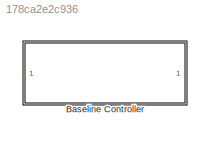
MODEL slx_178ca2e2c936
KIND model
CONFIG AbsTol = auto
CONFIG FixedStep = auto
CONFIG MaxStep = auto
CONFIG MinStep = auto
CONFIG RelTol = 1e-3
CONFIG SampleTimeConstraint = Unconstrained
CONFIG Solver = VariableStepAuto
CONFIG SolverMode = Auto
CONFIG SolverName = VariableStepAuto
CONFIG StartTime = 0.0
CONFIG StopTime = 10.0
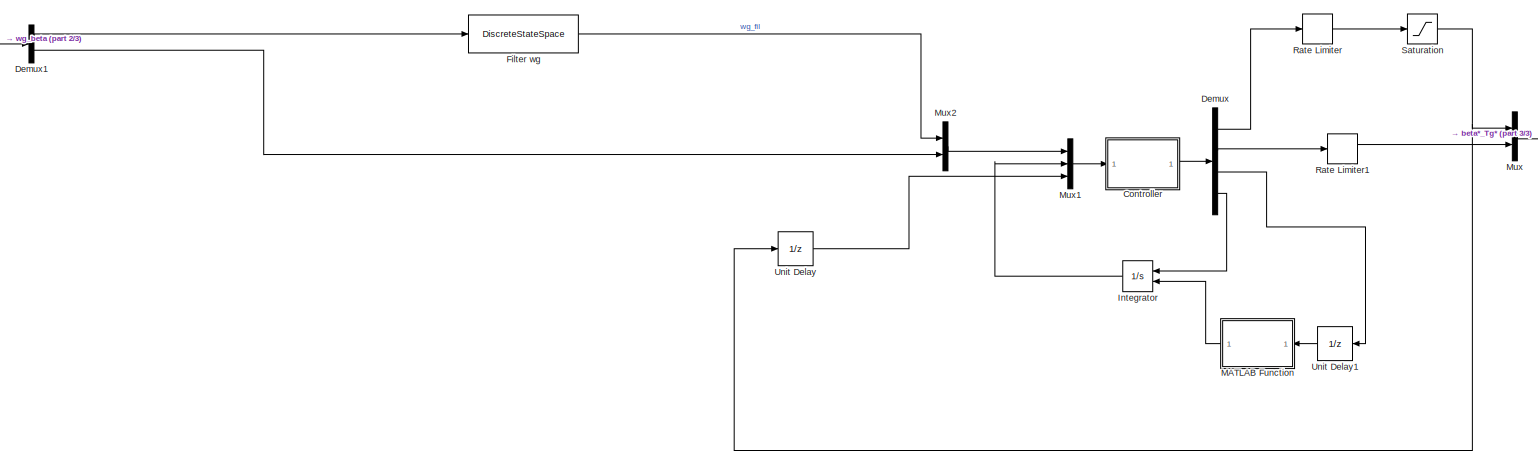
[diagram: Baseline Controller - part 1/3, most of the canvas]
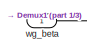
[diagram: Baseline Controller - part 2/3, top left region]
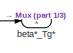
[diagram: Baseline Controller - part 3/3, middle right region]
BLOCK [SubSystem] Baseline Controller
  Ports = [1, 1]
  RequestExecContextInheritance = off
  Variant = off
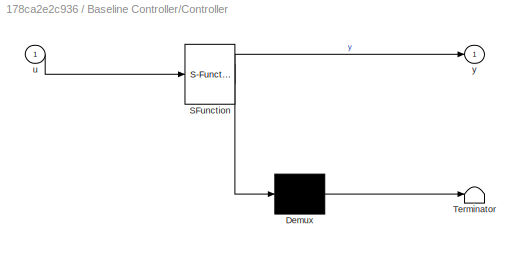
BLOCK [SubSystem] Baseline Controller/Controller
  ErrorFcn = Stateflow.Translate.translate
  PermitHierarchicalResolution = ExplicitOnly
  Ports = [1, 1]
  RequestExecContextInheritance = off
  SFBlockType = MATLAB Function
  TreatAsAtomicUnit = on
  Variant = off
BLOCK [Demux] Baseline Controller/Controller/ Demux 
  Outputs = 1
  Ports = [1, 1]
BLOCK [S-Function] Baseline Controller/Controller/ SFunction 
  EnableBusSupport = on
  FunctionName = sf_sfun
  Parameters = para_cntrl
  PortCounts = [1 2]
  Ports = [1, 2]
  SFunctionDeploymentMode = off
  Tag = Stateflow S-Function BaseLineCntrl 2
BLOCK [Terminator] Baseline Controller/Controller/ Terminator 
BLOCK [Inport] Baseline Controller/Controller/u
  IconDisplay = Port number
BLOCK [Outport] Baseline Controller/Controller/y
  IconDisplay = Port number
BLOCK [Demux] Baseline Controller/Demux
  DisplayOption = bar
  Ports = [1, 4]
BLOCK [Demux] Baseline Controller/Demux1
  DisplayOption = bar
  Outputs = 2
  Ports = [1, 2]
BLOCK [DiscreteStateSpace] Baseline Controller/Filter wg
  A = exp(-2*pi*para_mdl.dT*para_cntrl.filter.fc)
  B = 1-exp(-2*pi*para_mdl.dT*para_cntrl.filter.fc)
  C = exp(-2*pi*para_mdl.dT*para_cntrl.filter.fc)
  D = 1-exp(-2*pi*para_mdl.dT*para_cntrl.filter.fc)
  SampleTime = para_mdl.dT
  X0 = para_cntrl.ref.wg_d
BLOCK [Integrator] Baseline Controller/Integrator
  ExternalReset = rising
  InitialCondition = para_cntrl.initial.int_PCntrl
  Ports = [2, 1]
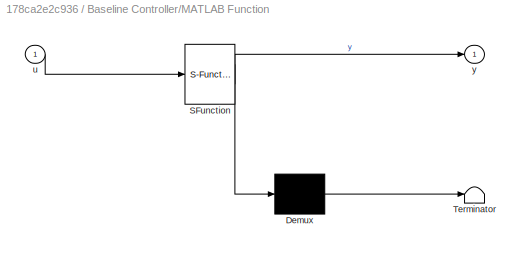
BLOCK [SubSystem] Baseline Controller/MATLAB Function
  ErrorFcn = Stateflow.Translate.translate
  PermitHierarchicalResolution = ExplicitOnly
  Ports = [1, 1]
  RequestExecContextInheritance = off
  SFBlockType = MATLAB Function
  TreatAsAtomicUnit = on
  Variant = off
BLOCK [Demux] Baseline Controller/MATLAB Function/ Demux 
  Outputs = 1
  Ports = [1, 1]
BLOCK [S-Function] Baseline Controller/MATLAB Function/ SFunction 
  EnableBusSupport = on
  FunctionName = sf_sfun
  PortCounts = [1 2]
  Ports = [1, 2]
  SFunctionDeploymentMode = off
  Tag = Stateflow S-Function BaseLineCntrl 1
BLOCK [Terminator] Baseline Controller/MATLAB Function/ Terminator 
BLOCK [Inport] Baseline Controller/MATLAB Function/u
  IconDisplay = Port number
BLOCK [Outport] Baseline Controller/MATLAB Function/y
  IconDisplay = Port number
BLOCK [Mux] Baseline Controller/Mux
  DisplayOption = bar
  Inputs = 2
  Ports = [2, 1]
BLOCK [Mux] Baseline Controller/Mux1
  DisplayOption = bar
  Inputs = 3
  Ports = [3, 1]
BLOCK [Mux] Baseline Controller/Mux2
  DisplayOption = bar
  Inputs = 2
  Ports = [2, 1]
BLOCK [RateLimiter] Baseline Controller/Rate Limiter
  FallingSlewLimit = -para_cntrl.limits.beta_rate/180*pi
  RisingSlewLimit = para_cntrl.limits.beta_rate/180*pi
  SampleTimeMode = inherited
BLOCK [RateLimiter] Baseline Controller/Rate Limiter1
  FallingSlewLimit = -para_cntrl.limits.Tg_rate
  RisingSlewLimit = para_cntrl.limits.Tg_rate
  SampleTimeMode = inherited
BLOCK [Saturate] Baseline Controller/Saturation
  InputPortMap = u0
  LowerLimit = 0
  Ports = [1, 1]
  UpperLimit = 90/180*pi
BLOCK [UnitDelay] Baseline Controller/Unit Delay
  InputProcessing = Elements as channels (sample based)
  SampleTime = para_mdl.dT
BLOCK [UnitDelay] Baseline Controller/Unit Delay1
  InputProcessing = Elements as channels (sample based)
  SampleTime = para_mdl.dT
BLOCK [Outport] Baseline Controller/beta*_Tg*
  IconDisplay = Port number
BLOCK [Inport] Baseline Controller/wg_beta
  IconDisplay = Port number
LINE Baseline Controller/Controller:1 -> Baseline Controller/Demux:1
LINE Baseline Controller/Demux1:1 -> Baseline Controller/Filter wg:1
LINE Baseline Controller/Demux1:2 -> Baseline Controller/Mux2:2
LINE Baseline Controller/Demux:1 -> Baseline Controller/Rate Limiter:1
LINE Baseline Controller/Demux:2 -> Baseline Controller/Rate Limiter1:1
LINE Baseline Controller/Demux:3 -> Baseline Controller/Unit Delay1:1
LINE Baseline Controller/Demux:4 -> Baseline Controller/Integrator:1
LINE Baseline Controller/Filter wg:1 -> Baseline Controller/Mux2:1
LINE Baseline Controller/Integrator:1 -> Baseline Controller/Mux1:2
LINE Baseline Controller/MATLAB Function:1 -> Baseline Controller/Integrator:2
LINE Baseline Controller/Mux1:1 -> Baseline Controller/Controller:1
LINE Baseline Controller/Mux2:1 -> Baseline Controller/Mux1:1
LINE Baseline Controller/Mux:1 -> Baseline Controller/beta*_Tg*:1
LINE Baseline Controller/Rate Limiter1:1 -> Baseline Controller/Mux:2
LINE Baseline Controller/Rate Limiter:1 -> Baseline Controller/Saturation:1
NET Baseline Controller/Saturation:1 -> Baseline Controller/Mux:1, Baseline Controller/Unit Delay:1
LINE Baseline Controller/Unit Delay1:1 -> Baseline Controller/MATLAB Function:1
LINE Baseline Controller/Unit Delay:1 -> Baseline Controller/Mux1:3
LINE Baseline Controller/wg_beta:1 -> Baseline Controller/Demux1:1
note: NET lines group one-source signal fan-out (src -> all destinations, sorted); 1:1 wires keep LINE
CHART Baseline Controller/MATLAB Function states=1 transitions=1
  STATE_LABEL 'eML_blk_kernel()'
  STATE_LABEL 'SCRIPT:\nfunction y = fcn(u)\n%#codegen\nif u < 5\n    y = 1;\nelse \n    y = 0;\nend'
CHART Baseline Controller/Controller states=1 transitions=1
  STATE_LABEL 'eML_blk_kernel()'
  STATE_LABEL 'SCRIPT:\nfunction y = fcn(u,para_cntrl)\n% Regler für den gesamten Arbeitsbereich der Windturbine, für eine\n% Beschreibung der Reglerparameter und verwendeten Arbeitspunkte: create_para_cntrl_5MWBaseline.m\n\n% --------------------------------------------------- read inputs\n% the input size of u is determined in the simulink model explorer (otherwise Simulink produces errors)\n\nwg = u(1); % in [rad/s];...<+3324ch>'
